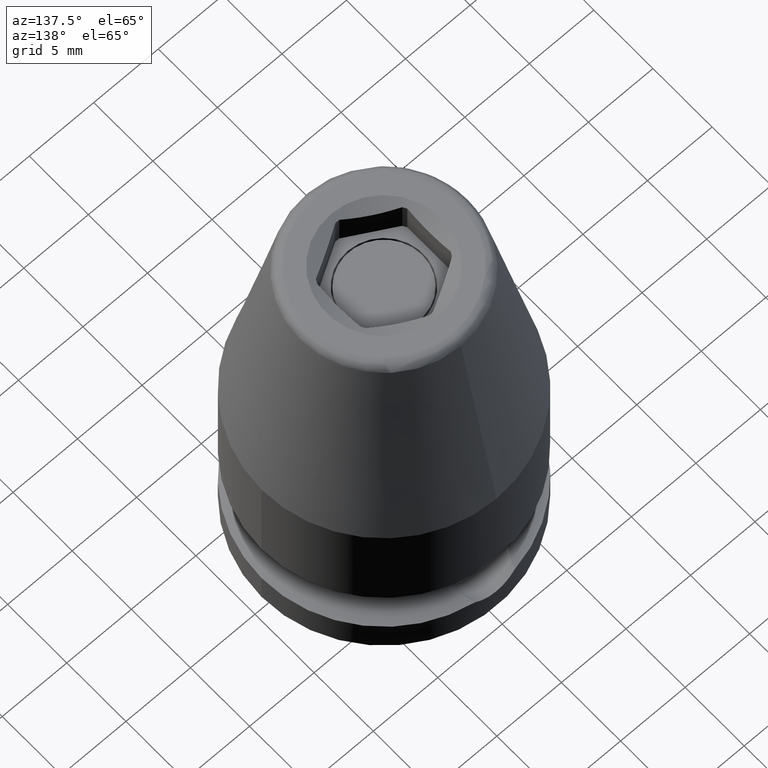
[diagram: clean part render]
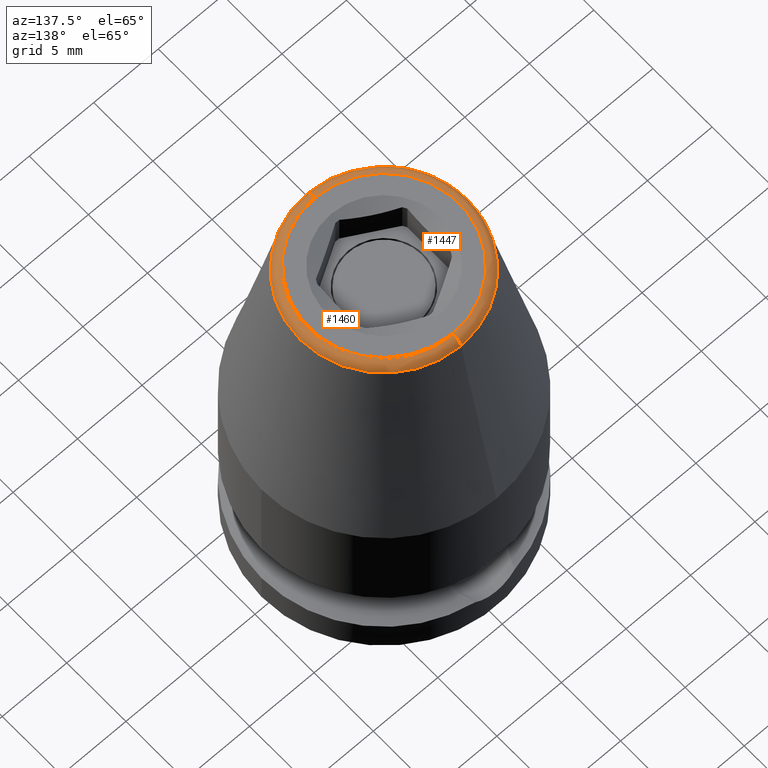
[diagram: same view with one multi-face feature highlighted, each face labeled with its STEP entity id]
A machine part, auxiliary view. The highlighted faces form ONE feature: a constant-radius fillet chain: 2 tangent blend faces with common blend radius 0.7 mm. The faces share edges in the B-rep.
Their STEP definitions:
[1] entity #1447 (Torus):
#309=CARTESIAN_POINT('',(0.E0,0.E0,3.2E1));
#310=DIRECTION('',(0.E0,0.E0,1.E0));
#311=DIRECTION('',(0.E0,1.E0,0.E0));
#312=AXIS2_PLACEMENT_3D('',#309,#310,#311);
#319=CARTESIAN_POINT('',(2.746171345880E-12,5.819267838373E0,3.13E1));
#320=DIRECTION('',(-1.E0,4.719089702343E-13,0.E0));
#321=DIRECTION('',(0.E0,0.E0,1.E0));
#322=AXIS2_PLACEMENT_3D('',#319,#320,#321);
#324=CARTESIAN_POINT('',(-2.749994676421E-12,-5.819267838373E0,3.13E1));
#325=DIRECTION('',(1.E0,-4.725664304317E-13,0.E0));
#326=DIRECTION('',(0.E0,0.E0,1.E0));
#327=AXIS2_PLACEMENT_3D('',#324,#325,#326);
#342=CARTESIAN_POINT('',(0.E0,0.E0,3.142925370775E1));
#343=DIRECTION('',(0.E0,0.E0,1.E0));
#344=DIRECTION('',(0.E0,1.E0,0.E0));
#345=AXIS2_PLACEMENT_3D('',#342,#343,#344);
#1077=CARTESIAN_POINT('',(0.E0,5.819267838373E0,3.2E1));
#1078=CARTESIAN_POINT('',(0.E0,-5.819267838373E0,3.2E1));
#1079=VERTEX_POINT('',#1077);
#1080=VERTEX_POINT('',#1078);
#1081=CARTESIAN_POINT('',(0.E0,6.507231121574E0,3.142925370775E1));
#1082=CARTESIAN_POINT('',(0.E0,-6.507231121574E0,3.142925370775E1));
#1083=VERTEX_POINT('',#1081);
#1084=VERTEX_POINT('',#1082);
#1433=CARTESIAN_POINT('',(0.E0,0.E0,3.13E1));
#1434=DIRECTION('',(0.E0,0.E0,1.E0));
#1435=DIRECTION('',(8.206946457487E-3,9.999663224478E-1,0.E0));
#1436=AXIS2_PLACEMENT_3D('',#1433,#1434,#1435);
#1437=TOROIDAL_SURFACE('',#1436,5.819267838373E0,7.E-1);
#1438=ORIENTED_EDGE('',*,*,#1422,.T.);
#1440=ORIENTED_EDGE('',*,*,#1439,.T.);
#1442=ORIENTED_EDGE('',*,*,#1441,.F.);
#1444=ORIENTED_EDGE('',*,*,#1443,.F.);
#1445=EDGE_LOOP('',(#1438,#1440,#1442,#1444));
#1446=FACE_OUTER_BOUND('',#1445,.F.);
#1447=ADVANCED_FACE('',(#1446),#1437,.T.);
#313=CIRCLE('',#312,5.819267838373E0);
#323=CIRCLE('',#322,7.E-1);
#328=CIRCLE('',#327,7.E-1);
#346=CIRCLE('',#345,6.507231121574E0);
#1422=EDGE_CURVE('',#1079,#1080,#313,.T.);
#1439=EDGE_CURVE('',#1080,#1084,#328,.T.);
#1441=EDGE_CURVE('',#1083,#1084,#346,.T.);
#1443=EDGE_CURVE('',#1079,#1083,#323,.T.);
[2] entity #1460 (Torus):
#314=CARTESIAN_POINT('',(0.E0,0.E0,3.2E1));
#315=DIRECTION('',(0.E0,0.E0,1.E0));
#316=DIRECTION('',(0.E0,-1.E0,0.E0));
#317=AXIS2_PLACEMENT_3D('',#314,#315,#316);
#319=CARTESIAN_POINT('',(2.746171345880E-12,5.819267838373E0,3.13E1));
#320=DIRECTION('',(-1.E0,4.719089702343E-13,0.E0));
#321=DIRECTION('',(0.E0,0.E0,1.E0));
#322=AXIS2_PLACEMENT_3D('',#319,#320,#321);
#324=CARTESIAN_POINT('',(-2.749994676421E-12,-5.819267838373E0,3.13E1));
#325=DIRECTION('',(1.E0,-4.725664304317E-13,0.E0));
#326=DIRECTION('',(0.E0,0.E0,1.E0));
#327=AXIS2_PLACEMENT_3D('',#324,#325,#326);
#329=CARTESIAN_POINT('',(0.E0,0.E0,3.142925370775E1));
#330=DIRECTION('',(0.E0,0.E0,1.E0));
#331=DIRECTION('',(0.E0,-1.E0,0.E0));
#332=AXIS2_PLACEMENT_3D('',#329,#330,#331);
#1077=CARTESIAN_POINT('',(0.E0,5.819267838373E0,3.2E1));
#1078=CARTESIAN_POINT('',(0.E0,-5.819267838373E0,3.2E1));
#1079=VERTEX_POINT('',#1077);
#1080=VERTEX_POINT('',#1078);
#1081=CARTESIAN_POINT('',(0.E0,6.507231121574E0,3.142925370775E1));
#1082=CARTESIAN_POINT('',(0.E0,-6.507231121574E0,3.142925370775E1));
#1083=VERTEX_POINT('',#1081);
#1084=VERTEX_POINT('',#1082);
#1448=CARTESIAN_POINT('',(0.E0,0.E0,3.13E1));
#1449=DIRECTION('',(0.E0,0.E0,1.E0));
#1450=DIRECTION('',(-8.206946457487E-3,-9.999663224478E-1,0.E0));
#1451=AXIS2_PLACEMENT_3D('',#1448,#1449,#1450);
#1452=TOROIDAL_SURFACE('',#1451,5.819267838373E0,7.E-1);
#1453=ORIENTED_EDGE('',*,*,#1424,.T.);
#1454=ORIENTED_EDGE('',*,*,#1443,.T.);
#1456=ORIENTED_EDGE('',*,*,#1455,.F.);
#1457=ORIENTED_EDGE('',*,*,#1439,.F.);
#1458=EDGE_LOOP('',(#1453,#1454,#1456,#1457));
#1459=FACE_OUTER_BOUND('',#1458,.F.);
#1460=ADVANCED_FACE('',(#1459),#1452,.T.);
#318=CIRCLE('',#317,5.819267838373E0);
#323=CIRCLE('',#322,7.E-1);
#328=CIRCLE('',#327,7.E-1);
#333=CIRCLE('',#332,6.507231121574E0);
#1424=EDGE_CURVE('',#1080,#1079,#318,.T.);
#1439=EDGE_CURVE('',#1080,#1084,#328,.T.);
#1443=EDGE_CURVE('',#1079,#1083,#323,.T.);
#1455=EDGE_CURVE('',#1084,#1083,#333,.T.);